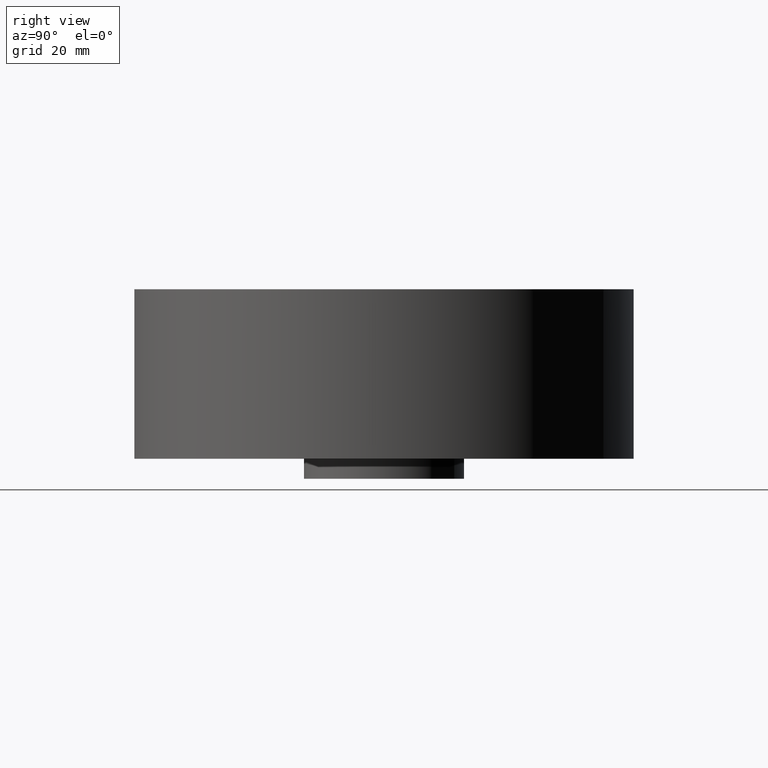
[diagram: clean part render]
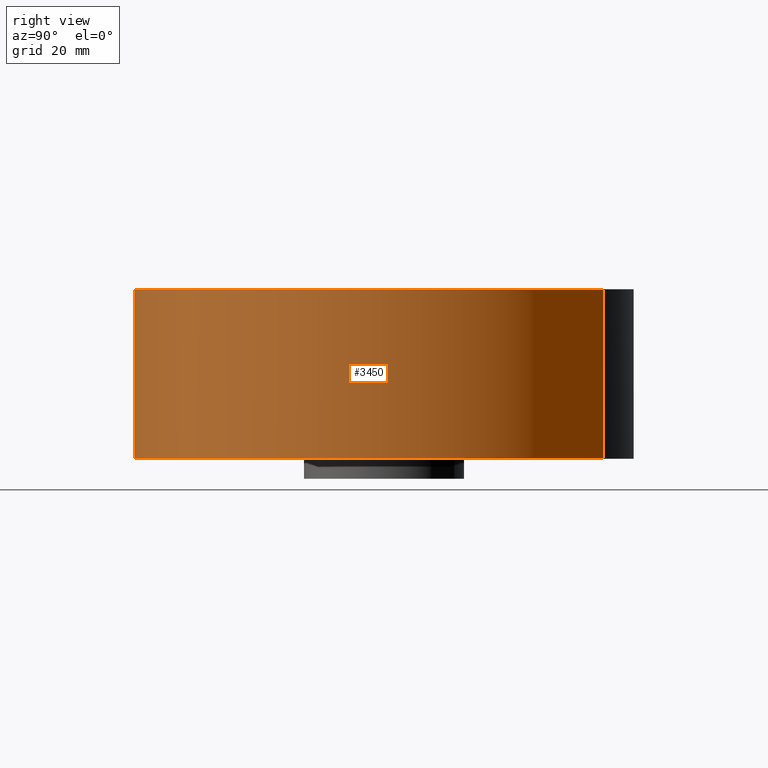
[diagram: same view with one face highlighted and labeled with its STEP entity id]
A machine part, right view. The second image highlights one B-rep face of the part: STEP entity #3450.
In plain terms, the highlighted cylindrical surface (partial cylindrical patch) has radius 79.375 mm, axis along (0, 0, -1).
Its self-contained STEP definition (entity closure, byte-faithful):
#3324=AXIS2_PLACEMENT_3D('Circle Axis2P3D',#3322,#3323,$) ;
#3411=AXIS2_PLACEMENT_3D('Cylinder Axis2P3D',#3408,#3409,#3410) ;
#3441=AXIS2_PLACEMENT_3D('Circle Axis2P3D',#3439,#3440,$) ;
#3317=CARTESIAN_POINT('Vertex',(-1.49820480814,-2.74244550592,-3.72055841953E-014)) ;
#3319=CARTESIAN_POINT('Vertex',(1.49820480814,2.74244550592,-3.72055841953E-014)) ;
#3322=CARTESIAN_POINT('Axis2P3D Location',(0.,0.,0.)) ;
#3408=CARTESIAN_POINT('Axis2P3D Location',(0.,0.,0.935000000004)) ;
#3413=CARTESIAN_POINT('Line Origine',(-1.49820480814,-2.74244550592,1.06)) ;
#3417=CARTESIAN_POINT('Vertex',(-1.49820480814,-2.74244550592,2.12000000001)) ;
#3424=CARTESIAN_POINT('Vertex',(1.49820480814,2.74244550592,2.12000000001)) ;
#3427=CARTESIAN_POINT('Line Origine',(1.49820480814,2.74244550592,1.06)) ;
#3439=CARTESIAN_POINT('Axis2P3D Location',(0.,0.,2.12000000001)) ;
#3323=DIRECTION('Axis2P3D Direction',(0.,0.,-0.0393700787402)) ;
#3409=DIRECTION('Axis2P3D Direction',(0.,0.,-0.0393700787402)) ;
#3410=DIRECTION('Axis2P3D XDirection',(0.0188750212049,0.0345504945626,0.)) ;
#3414=DIRECTION('Vector Direction',(0.,0.,-0.0393700787402)) ;
#3428=DIRECTION('Vector Direction',(0.,0.,-0.0393700787402)) ;
#3440=DIRECTION('Axis2P3D Direction',(0.,0.,-0.0393700787402)) ;
#3415=VECTOR('Line Direction',#3414,0.0393700787402) ;
#3429=VECTOR('Line Direction',#3428,0.0393700787402) ;
#3445=ORIENTED_EDGE('',*,*,#3326,.F.) ;
#3446=ORIENTED_EDGE('',*,*,#3431,.T.) ;
#3447=ORIENTED_EDGE('',*,*,#3443,.T.) ;
#3448=ORIENTED_EDGE('',*,*,#3419,.F.) ;
#3450=ADVANCED_FACE('PartBody',(#3449),#3412,.T.) ;
#3325=CIRCLE('generated circle',#3324,3.12500000001) ;
#3442=CIRCLE('generated circle',#3441,3.12500000001) ;
#3412=CYLINDRICAL_SURFACE('generated cylinder',#3411,3.12500000001) ;
#3326=EDGE_CURVE('',#3320,#3318,#3325,.T.) ;
#3419=EDGE_CURVE('',#3318,#3418,#3416,.F.) ;
#3431=EDGE_CURVE('',#3320,#3425,#3430,.F.) ;
#3443=EDGE_CURVE('',#3425,#3418,#3442,.T.) ;
#3444=EDGE_LOOP('',(#3445,#3446,#3447,#3448)) ;
#3449=FACE_OUTER_BOUND('',#3444,.T.) ;
#3416=LINE('Line',#3413,#3415) ;
#3430=LINE('Line',#3427,#3429) ;
#3318=VERTEX_POINT('',#3317) ;
#3320=VERTEX_POINT('',#3319) ;
#3418=VERTEX_POINT('',#3417) ;
#3425=VERTEX_POINT('',#3424) ;